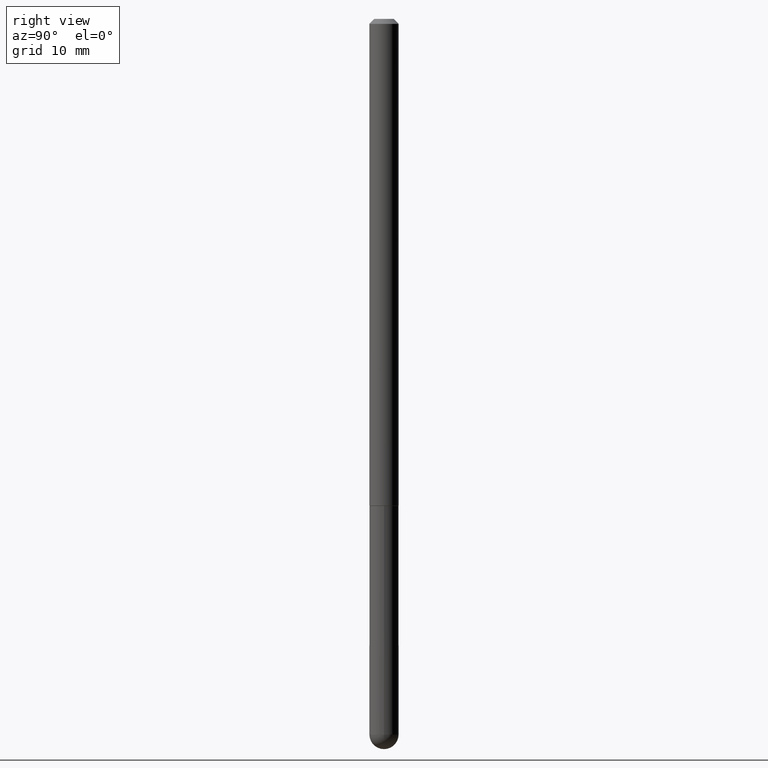
[diagram: clean part render]
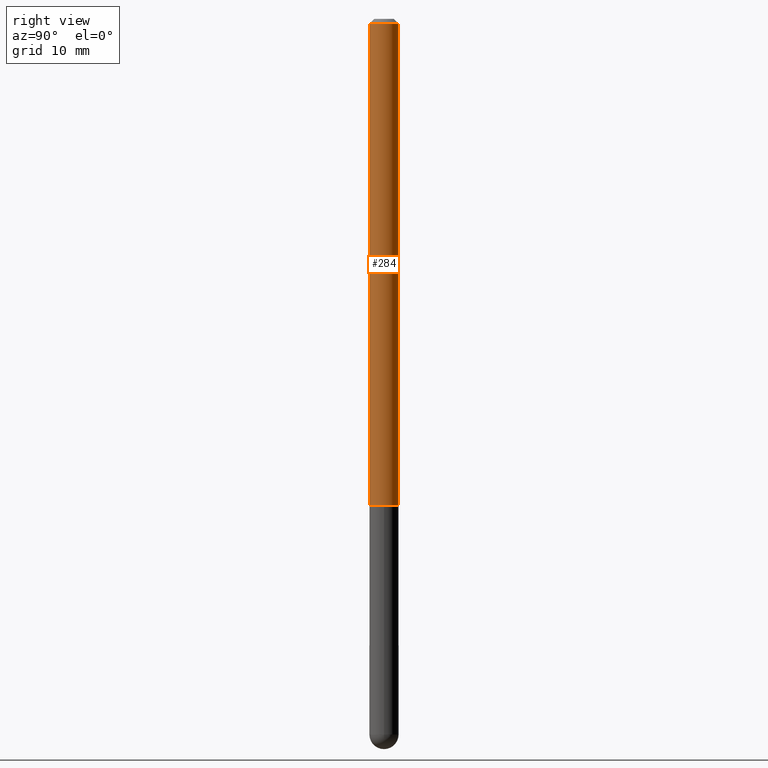
[diagram: same view with one face highlighted and labeled with its STEP entity id]
A machine part, right view. The second image highlights one B-rep face of the part: STEP entity #284.
In plain terms, the highlighted cylindrical surface (edge-blend (fillet) strip) has radius 1.4999 mm, axis along (-0, 0, 1).
Its self-contained STEP definition (entity closure, byte-faithful):
#9 = DIRECTION ( 'NONE',  ( -2.452606242276133797E-29, 3.481260124123203654E-15, 1.000000000000000000 ) ) ;
#13 = ORIENTED_EDGE ( 'NONE', *, *, #178, .T. ) ;
#36 = AXIS2_PLACEMENT_3D ( 'NONE', #406, #121, #249 ) ;
#48 = CYLINDRICAL_SURFACE ( 'NONE', #57, 0.05905000000000010935 ) ;
#51 = CARTESIAN_POINT ( 'NONE',  ( 4.195754854663646379E-16, 0.05904999999999335780, -1.967500000000000027 ) ) ;
#57 = AXIS2_PLACEMENT_3D ( 'NONE', #137, #9, #177 ) ;
#78 = AXIS2_PLACEMENT_3D ( 'NONE', #348, #313, #113 ) ;
#87 = DIRECTION ( 'NONE',  ( -2.452606242276134078E-29, 3.481260124123204048E-15, 1.000000000000000000 ) ) ;
#90 = EDGE_CURVE ( 'NONE', #387, #207, #210, .T. ) ;
#104 = ORIENTED_EDGE ( 'NONE', *, *, #90, .T. ) ;
#112 = VECTOR ( 'NONE', #87, 39.37007874015748143 ) ;
#113 = DIRECTION ( 'NONE',  ( -6.982962677686265922E-15, -1.000000000000000000, 3.469747663417776213E-15 ) ) ;
#121 = DIRECTION ( 'NONE',  ( -2.452606242276133797E-29, 3.481260124123203654E-15, 1.000000000000000000 ) ) ;
#125 = CARTESIAN_POINT ( 'NONE',  ( -4.123439461173271448E-16, -0.05905000000000704824, -1.967499999999999361 ) ) ;
#137 = CARTESIAN_POINT ( 'NONE',  ( 0.000000000000000000, 0.000000000000000000, 0.000000000000000000 ) ) ;
#154 = CARTESIAN_POINT ( 'NONE',  ( -4.051124067684085231E-16, -0.05905000000000008159, -0.01999999999999986511 ) ) ;
#162 = VERTEX_POINT ( 'NONE', #154 ) ;
#177 = DIRECTION ( 'NONE',  ( -6.982962677686265922E-15, -1.000000000000000000, 3.481260124123203654E-15 ) ) ;
#178 = EDGE_CURVE ( 'NONE', #207, #267, #346, .T. ) ;
#182 = EDGE_CURVE ( 'NONE', #162, #267, #383, .T. ) ;
#186 = EDGE_CURVE ( 'NONE', #387, #162, #242, .T. ) ;
#207 = VERTEX_POINT ( 'NONE', #51 ) ;
#210 = CIRCLE ( 'NONE', #36, 0.05905000000000020649 ) ;
#234 = ORIENTED_EDGE ( 'NONE', *, *, #182, .F. ) ;
#242 = LINE ( 'NONE', #244, #294 ) ;
#244 = CARTESIAN_POINT ( 'NONE',  ( -4.123439461173747722E-16, -0.05905000000000010935, 2.055684103294755676E-16 ) ) ;
#249 = DIRECTION ( 'NONE',  ( -6.982962677686265922E-15, -1.000000000000000000, 4.626330217890353559E-15 ) ) ;
#263 = ORIENTED_EDGE ( 'NONE', *, *, #186, .F. ) ;
#267 = VERTEX_POINT ( 'NONE', #328 ) ;
#279 = DIRECTION ( 'NONE',  ( -2.452606242276134078E-29, 3.481260124123204048E-15, 1.000000000000000000 ) ) ;
#284 = ADVANCED_FACE ( 'NONE', ( #303 ), #48, .T. ) ;
#294 = VECTOR ( 'NONE', #279, 39.37007874015748143 ) ;
#303 = FACE_OUTER_BOUND ( 'NONE', #326, .T. ) ;
#312 = CARTESIAN_POINT ( 'NONE',  ( 4.195754854663398874E-16, 0.05905000000000010935, -2.055684103294755676E-16 ) ) ;
#313 = DIRECTION ( 'NONE',  ( -2.452606242276133797E-29, 3.481260124123203654E-15, 1.000000000000000000 ) ) ;
#326 = EDGE_LOOP ( 'NONE', ( #104, #13, #234, #263 ) ) ;
#328 = CARTESIAN_POINT ( 'NONE',  ( 4.123439461173745750E-16, 0.05904999999999994975, -0.02000000000000027450 ) ) ;
#346 = LINE ( 'NONE', #312, #112 ) ;
#348 = CARTESIAN_POINT ( 'NONE',  ( 4.905212484552284025E-31, -6.962520248246431022E-17, -0.02000000000000006981 ) ) ;
#383 = CIRCLE ( 'NONE', #78, 0.05905000000000001914 ) ;
#387 = VERTEX_POINT ( 'NONE', #125 ) ;
#406 = CARTESIAN_POINT ( 'NONE',  ( 4.825502781678292621E-29, -6.849379294212400691E-15, -1.967499999999999805 ) ) ;